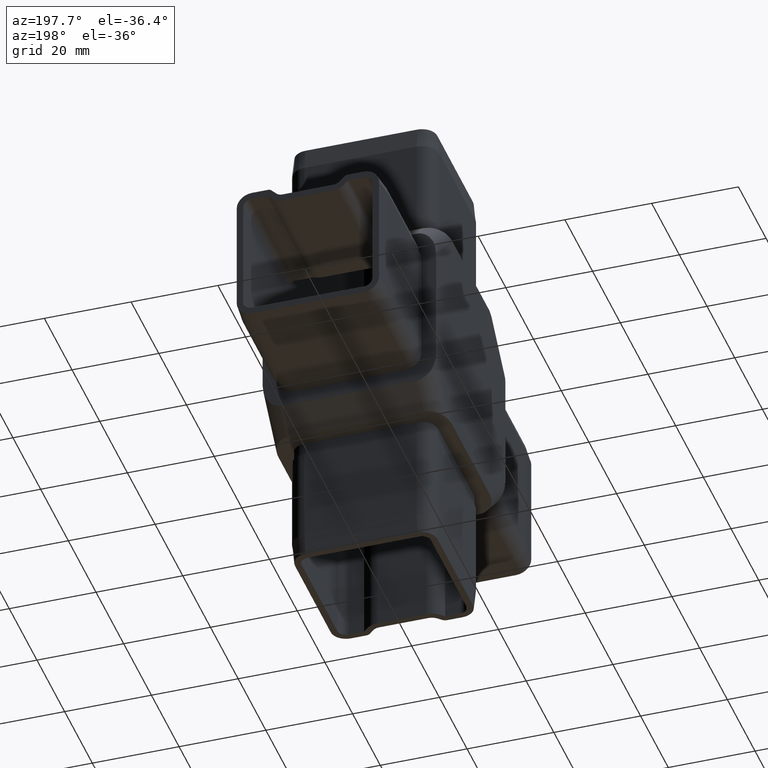
[diagram: clean part render]
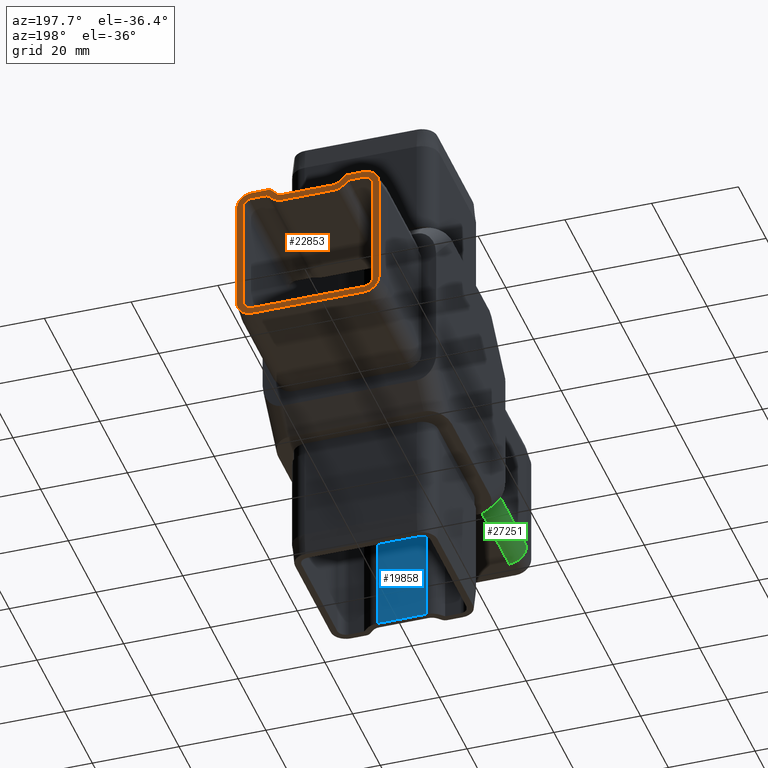
[diagram: same view with three faces highlighted in distinct colors, each labeled with its STEP entity id]
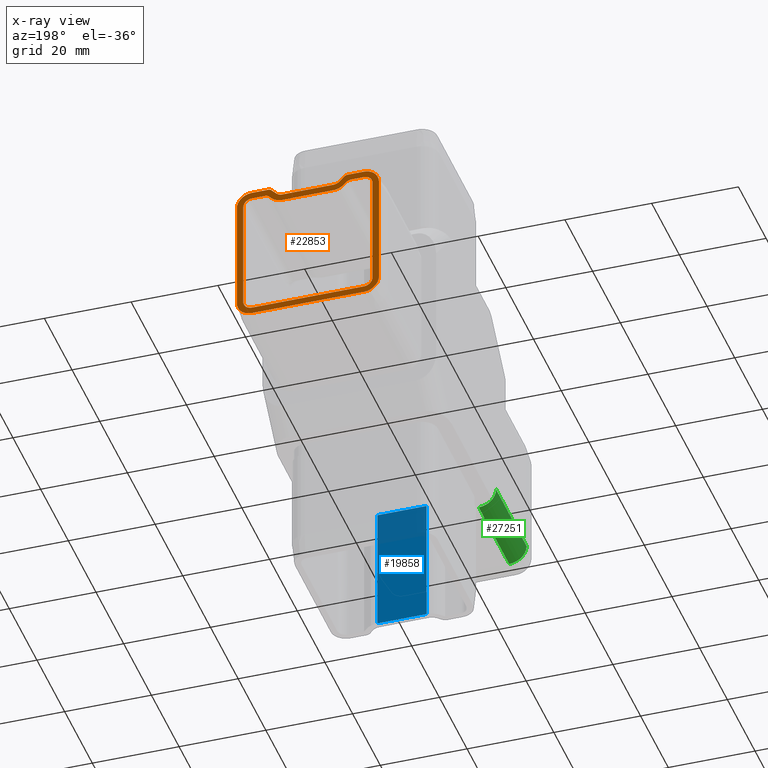
[diagram: x-ray of the same camera — body ghosted, the three highlighted faces saturated]
A machine part, auxiliary view with three faces highlighted in distinct colors.
The next image is the same camera in x-ray (body ghosted, the three faces saturated) — at least one of them is partly hidden behind the body in this view.
Their STEP definitions:

[orange] entity #22853 — the highlighted planar face has unit normal (0, 1, 0).
#66 = VECTOR ( 'NONE', #5137, 1000.000000000000000 ) ;
#212 = CARTESIAN_POINT ( 'NONE',  ( 9.121320343559645500, 54.99999999999999300, 15.40000000000000400 ) ) ;
#433 = VERTEX_POINT ( 'NONE', #9870 ) ;
#439 = CARTESIAN_POINT ( 'NONE',  ( 12.89999999999999900, 54.99999999999999300, 16.40000000000000600 ) ) ;
#707 = ORIENTED_EDGE ( 'NONE', *, *, #3073, .F. ) ;
#927 = CARTESIAN_POINT ( 'NONE',  ( -8.353553390593280200, 55.00000000000000000, 13.92512626584709100 ) ) ;
#981 = DIRECTION ( 'NONE',  ( 0.0000000000000000000, 0.0000000000000000000, -1.000000000000000000 ) ) ;
#1146 = CIRCLE ( 'NONE', #4066, 0.9999999999999904500 ) ;
#1230 = EDGE_CURVE ( 'NONE', #17230, #14850, #1146, .T. ) ;
#1303 = ORIENTED_EDGE ( 'NONE', *, *, #31641, .F. ) ;
#1318 = CARTESIAN_POINT ( 'NONE',  ( 8.414213562373101100, 54.99999999999999300, 16.10710678118654100 ) ) ;
#1738 = ORIENTED_EDGE ( 'NONE', *, *, #14950, .F. ) ;
#1876 = AXIS2_PLACEMENT_3D ( 'NONE', #20614, #5720, #981 ) ;
#1957 = ORIENTED_EDGE ( 'NONE', *, *, #8527, .F. ) ;
#1967 = CARTESIAN_POINT ( 'NONE',  ( 12.89999999999999900, 55.00000000000000000, 14.90000000000000600 ) ) ;
#2134 = VERTEX_POINT ( 'NONE', #12131 ) ;
#2229 = LINE ( 'NONE', #18598, #14988 ) ;
#2304 = FACE_BOUND ( 'NONE', #23704, .T. ) ;
#2414 = CARTESIAN_POINT ( 'NONE',  ( 5.878679656440369600, 55.00000000000000000, 16.40000000000000900 ) ) ;
#2453 = AXIS2_PLACEMENT_3D ( 'NONE', #11668, #18970, #14150 ) ;
#2483 = EDGE_CURVE ( 'NONE', #28726, #23460, #20472, .T. ) ;
#2627 = AXIS2_PLACEMENT_3D ( 'NONE', #17922, #30517, #30618 ) ;
#2635 = VECTOR ( 'NONE', #13842, 1000.000000000000000 ) ;
#2677 = CARTESIAN_POINT ( 'NONE',  ( 12.89999999999999900, 55.00000000000000000, 14.90000000000000600 ) ) ;
#2837 = VERTEX_POINT ( 'NONE', #28735 ) ;
#2942 = DIRECTION ( 'NONE',  ( 1.000000000000000000, -0.0000000000000000000, -0.0000000000000000000 ) ) ;
#2944 = EDGE_CURVE ( 'NONE', #11468, #17671, #26987, .T. ) ;
#3028 = EDGE_CURVE ( 'NONE', #27221, #17230, #10425, .T. ) ;
#3073 = EDGE_CURVE ( 'NONE', #22093, #16370, #23881, .T. ) ;
#3167 = CARTESIAN_POINT ( 'NONE',  ( -12.90000000000001300, 54.99999999999999300, 16.39999999999999500 ) ) ;
#3537 = DIRECTION ( 'NONE',  ( 2.689493761204353900E-016, 0.0000000000000000000, 1.000000000000000000 ) ) ;
#3598 = CARTESIAN_POINT ( 'NONE',  ( 12.89999999999999500, 54.99999999999999300, -16.39999999999997700 ) ) ;
#3628 = CARTESIAN_POINT ( 'NONE',  ( 7.292893218813467200, 54.99999999999999300, 14.98578643762690600 ) ) ;
#3632 = VECTOR ( 'NONE', #14459, 1000.000000000000000 ) ;
#3940 = CARTESIAN_POINT ( 'NONE',  ( -12.90000000000001300, 55.00000000000000000, 12.90000000000000600 ) ) ;
#3947 = DIRECTION ( 'NONE',  ( 0.0000000000000000000, 0.0000000000000000000, -1.000000000000000000 ) ) ;
#4060 = LINE ( 'NONE', #1967, #8302 ) ;
#4066 = AXIS2_PLACEMENT_3D ( 'NONE', #212, #17501, #21867 ) ;
#4127 = CARTESIAN_POINT ( 'NONE',  ( -14.90000000000001300, 55.00000000000000000, -12.89999999999997700 ) ) ;
#4234 = LINE ( 'NONE', #24705, #7728 ) ;
#4260 = DIRECTION ( 'NONE',  ( -0.0000000000000000000, -1.000000000000000000, -0.0000000000000000000 ) ) ;
#4262 = LINE ( 'NONE', #28180, #18167 ) ;
#4354 = CARTESIAN_POINT ( 'NONE',  ( -5.878679656440366100, 55.00000000000000000, 16.40000000000000900 ) ) ;
#4933 = CIRCLE ( 'NONE', #8967, 2.000000000000005300 ) ;
#5137 = DIRECTION ( 'NONE',  ( -0.7071067811865470200, 0.0000000000000000000, 0.7071067811865481300 ) ) ;
#5156 = VERTEX_POINT ( 'NONE', #4127 ) ;
#5358 = DIRECTION ( 'NONE',  ( -0.0000000000000000000, -1.000000000000000000, -0.0000000000000000000 ) ) ;
#5576 = ORIENTED_EDGE ( 'NONE', *, *, #28648, .F. ) ;
#5586 = ORIENTED_EDGE ( 'NONE', *, *, #15085, .F. ) ;
#5604 = ORIENTED_EDGE ( 'NONE', *, *, #21887, .F. ) ;
#5720 = DIRECTION ( 'NONE',  ( -0.0000000000000000000, -1.000000000000000000, -0.0000000000000000000 ) ) ;
#5926 = ORIENTED_EDGE ( 'NONE', *, *, #20248, .F. ) ;
#5984 = VERTEX_POINT ( 'NONE', #13708 ) ;
#5985 = EDGE_CURVE ( 'NONE', #23667, #28561, #24589, .T. ) ;
#5994 = CARTESIAN_POINT ( 'NONE',  ( 5.878679656440368700, 54.99999999999999300, 14.40000000000000000 ) ) ;
#6047 = CIRCLE ( 'NONE', #28271, 2.000000000000005300 ) ;
#6113 = ORIENTED_EDGE ( 'NONE', *, *, #26718, .F. ) ;
#6114 = CARTESIAN_POINT ( 'NONE',  ( -14.90000000000001300, 55.00000000000000000, 12.90000000000000600 ) ) ;
#6161 = LINE ( 'NONE', #25544, #30107 ) ;
#6328 = VERTEX_POINT ( 'NONE', #21592 ) ;
#6833 = DIRECTION ( 'NONE',  ( 0.0000000000000000000, 0.0000000000000000000, 1.000000000000000000 ) ) ;
#6900 = CARTESIAN_POINT ( 'NONE',  ( -9.121320343559641900, 54.99999999999999300, 15.40000000000000600 ) ) ;
#6926 = CIRCLE ( 'NONE', #20261, 1.499999999999999600 ) ;
#6948 = VECTOR ( 'NONE', #22957, 1000.000000000000100 ) ;
#7067 = ORIENTED_EDGE ( 'NONE', *, *, #5985, .F. ) ;
#7301 = EDGE_CURVE ( 'NONE', #21598, #18815, #24938, .T. ) ;
#7323 = VERTEX_POINT ( 'NONE', #23683 ) ;
#7384 = CIRCLE ( 'NONE', #10070, 3.499999999999985800 ) ;
#7663 = CARTESIAN_POINT ( 'NONE',  ( -6.938893903907228400E-015, 55.00000000000000000, -16.39999999999997700 ) ) ;
#7728 = VECTOR ( 'NONE', #19432, 1000.000000000000000 ) ;
#7745 = FACE_OUTER_BOUND ( 'NONE', #20897, .T. ) ;
#7817 = ORIENTED_EDGE ( 'NONE', *, *, #8716, .F. ) ;
#7843 = DIRECTION ( 'NONE',  ( 0.0000000000000000000, 0.0000000000000000000, 1.000000000000000000 ) ) ;
#7994 = ORIENTED_EDGE ( 'NONE', *, *, #9137, .F. ) ;
#8109 = CIRCLE ( 'NONE', #12423, 1.500000000000003100 ) ;
#8254 = CARTESIAN_POINT ( 'NONE',  ( -12.90000000000001600, 54.99999999999999300, -16.39999999999996300 ) ) ;
#8302 = VECTOR ( 'NONE', #16676, 1000.000000000000000 ) ;
#8329 = VECTOR ( 'NONE', #23575, 1000.000000000000000 ) ;
#8447 = DIRECTION ( 'NONE',  ( 1.000000000000000000, -0.0000000000000000000, 5.879915218581809300E-016 ) ) ;
#8527 = EDGE_CURVE ( 'NONE', #24226, #21529, #21001, .T. ) ;
#8533 = CARTESIAN_POINT ( 'NONE',  ( -8.353553390593281900, 55.00000000000000000, 13.92512626584709200 ) ) ;
#8553 = DIRECTION ( 'NONE',  ( 0.0000000000000000000, 1.000000000000000000, -0.0000000000000000000 ) ) ;
#8716 = EDGE_CURVE ( 'NONE', #10280, #5156, #21741, .T. ) ;
#8853 = VERTEX_POINT ( 'NONE', #28298 ) ;
#8935 = ORIENTED_EDGE ( 'NONE', *, *, #9579, .F. ) ;
#8967 = AXIS2_PLACEMENT_3D ( 'NONE', #26381, #28761, #16382 ) ;
#9137 = EDGE_CURVE ( 'NONE', #2837, #24114, #11781, .T. ) ;
#9292 = CARTESIAN_POINT ( 'NONE',  ( 16.39999999999999900, 54.99999999999999300, 12.90000000000000700 ) ) ;
#9330 = CARTESIAN_POINT ( 'NONE',  ( 9.949747468305840700, 55.00000000000000000, 13.40000000000000600 ) ) ;
#9345 = CARTESIAN_POINT ( 'NONE',  ( -9.121320343559641900, 54.99999999999999300, 16.39999999999999500 ) ) ;
#9364 = DIRECTION ( 'NONE',  ( 0.0000000000000000000, 0.0000000000000000000, 1.000000000000000000 ) ) ;
#9427 = ORIENTED_EDGE ( 'NONE', *, *, #12931, .F. ) ;
#9579 = EDGE_CURVE ( 'NONE', #24114, #6328, #16377, .T. ) ;
#9870 = CARTESIAN_POINT ( 'NONE',  ( -9.949747468305840700, 55.00000000000000000, 14.90000000000000700 ) ) ;
#9897 = ORIENTED_EDGE ( 'NONE', *, *, #20443, .F. ) ;
#10070 = AXIS2_PLACEMENT_3D ( 'NONE', #15514, #5358, #20245 ) ;
#10280 = VERTEX_POINT ( 'NONE', #17836 ) ;
#10332 = CARTESIAN_POINT ( 'NONE',  ( -12.90000000000001300, 55.00000000000000000, -12.89999999999997700 ) ) ;
#10425 = LINE ( 'NONE', #439, #16214 ) ;
#10471 = ORIENTED_EDGE ( 'NONE', *, *, #25211, .F. ) ;
#10711 = CARTESIAN_POINT ( 'NONE',  ( 12.89999999999999900, 54.99999999999999300, 12.90000000000000600 ) ) ;
#10870 = CARTESIAN_POINT ( 'NONE',  ( 5.878679656440368700, 54.99999999999999300, 14.40000000000000000 ) ) ;
#10918 = DIRECTION ( 'NONE',  ( 0.0000000000000000000, 0.0000000000000000000, -1.000000000000000000 ) ) ;
#10982 = VECTOR ( 'NONE', #26665, 1000.000000000000000 ) ;
#11468 = VERTEX_POINT ( 'NONE', #31677 ) ;
#11551 = DIRECTION ( 'NONE',  ( 0.0000000000000000000, 1.000000000000000000, -0.0000000000000000000 ) ) ;
#11659 = DIRECTION ( 'NONE',  ( 0.0000000000000000000, 0.0000000000000000000, 1.000000000000000000 ) ) ;
#11668 = CARTESIAN_POINT ( 'NONE',  ( 12.89999999999999500, 55.00000000000000000, -12.89999999999997700 ) ) ;
#11743 = DIRECTION ( 'NONE',  ( 0.0000000000000000000, 0.0000000000000000000, -1.000000000000000000 ) ) ;
#11781 = LINE ( 'NONE', #22105, #10982 ) ;
#11883 = CARTESIAN_POINT ( 'NONE',  ( -7.292893218813466300, 54.99999999999999300, 14.98578643762690800 ) ) ;
#11922 = ORIENTED_EDGE ( 'NONE', *, *, #17466, .F. ) ;
#11993 = CARTESIAN_POINT ( 'NONE',  ( -9.121320343559641900, 54.99999999999999300, 16.39999999999999500 ) ) ;
#12030 = EDGE_CURVE ( 'NONE', #7323, #29218, #8109, .T. ) ;
#12099 = EDGE_CURVE ( 'NONE', #433, #28726, #6926, .T. ) ;
#12131 = CARTESIAN_POINT ( 'NONE',  ( -16.39999999999999900, 54.99999999999999300, -12.89999999999997500 ) ) ;
#12322 = CARTESIAN_POINT ( 'NONE',  ( -8.889087296526019700, 55.00000000000000000, 14.46066017177982700 ) ) ;
#12364 = EDGE_CURVE ( 'NONE', #12396, #11468, #30710, .T. ) ;
#12396 = VERTEX_POINT ( 'NONE', #15187 ) ;
#12423 = AXIS2_PLACEMENT_3D ( 'NONE', #9330, #14529, #19559 ) ;
#12590 = CARTESIAN_POINT ( 'NONE',  ( 9.121320343559645500, 54.99999999999999300, 16.39999999999999500 ) ) ;
#12600 = DIRECTION ( 'NONE',  ( -1.000000000000000000, 0.0000000000000000000, -2.754491463207510900E-015 ) ) ;
#12611 = ORIENTED_EDGE ( 'NONE', *, *, #7301, .F. ) ;
#12664 = VECTOR ( 'NONE', #15688, 1000.000000000000000 ) ;
#12840 = VECTOR ( 'NONE', #20755, 1000.000000000000000 ) ;
#12857 = ORIENTED_EDGE ( 'NONE', *, *, #12030, .F. ) ;
#12910 = CARTESIAN_POINT ( 'NONE',  ( 12.89999999999999500, 54.99999999999999300, -16.39999999999997700 ) ) ;
#12914 = CARTESIAN_POINT ( 'NONE',  ( 16.39999999999999100, 54.99999999999999300, -12.89999999999997500 ) ) ;
#12931 = EDGE_CURVE ( 'NONE', #21529, #5984, #30196, .T. ) ;
#13107 = LINE ( 'NONE', #28811, #2635 ) ;
#13226 = LINE ( 'NONE', #17451, #66 ) ;
#13321 = ORIENTED_EDGE ( 'NONE', *, *, #26556, .F. ) ;
#13698 = VERTEX_POINT ( 'NONE', #2677 ) ;
#13708 = CARTESIAN_POINT ( 'NONE',  ( -16.39999999999999900, 54.99999999999999300, 12.90000000000000700 ) ) ;
#13800 = ORIENTED_EDGE ( 'NONE', *, *, #20009, .T. ) ;
#13842 = DIRECTION ( 'NONE',  ( 0.0000000000000000000, 0.0000000000000000000, -1.000000000000000000 ) ) ;
#14150 = DIRECTION ( 'NONE',  ( 0.0000000000000000000, 0.0000000000000000000, 1.000000000000000000 ) ) ;
#14353 = DIRECTION ( 'NONE',  ( 0.0000000000000000000, 1.000000000000000000, 0.0000000000000000000 ) ) ;
#14459 = DIRECTION ( 'NONE',  ( -1.000000000000000000, 0.0000000000000000000, 0.0000000000000000000 ) ) ;
#14529 = DIRECTION ( 'NONE',  ( 0.0000000000000000000, 1.000000000000000000, -0.0000000000000000000 ) ) ;
#14662 = CARTESIAN_POINT ( 'NONE',  ( 5.878679656440369600, 54.99999999999999300, 16.40000000000000900 ) ) ;
#14850 = VERTEX_POINT ( 'NONE', #1318 ) ;
#14950 = EDGE_CURVE ( 'NONE', #15854, #16671, #18170, .T. ) ;
#14988 = VECTOR ( 'NONE', #15807, 1000.000000000000000 ) ;
#15085 = EDGE_CURVE ( 'NONE', #23460, #12396, #24331, .T. ) ;
#15161 = ORIENTED_EDGE ( 'NONE', *, *, #28553, .F. ) ;
#15187 = CARTESIAN_POINT ( 'NONE',  ( -5.878679656440366900, 55.00000000000000000, 12.90000000000000900 ) ) ;
#15332 = VECTOR ( 'NONE', #2942, 1000.000000000000000 ) ;
#15459 = CARTESIAN_POINT ( 'NONE',  ( 12.89999999999999900, 54.99999999999999300, 16.40000000000000600 ) ) ;
#15514 = CARTESIAN_POINT ( 'NONE',  ( -12.90000000000001300, 54.99999999999999300, -12.89999999999997700 ) ) ;
#15583 = AXIS2_PLACEMENT_3D ( 'NONE', #10711, #20296, #10918 ) ;
#15624 = CARTESIAN_POINT ( 'NONE',  ( 8.353553390593283700, 55.00000000000000000, 13.92512626584709200 ) ) ;
#15671 = EDGE_CURVE ( 'NONE', #5156, #23667, #4234, .T. ) ;
#15688 = DIRECTION ( 'NONE',  ( -0.7071067811865470200, 0.0000000000000000000, -0.7071067811865481300 ) ) ;
#15739 = ORIENTED_EDGE ( 'NONE', *, *, #30741, .F. ) ;
#15763 = PLANE ( 'NONE',  #2627 ) ;
#15807 = DIRECTION ( 'NONE',  ( -1.000000000000000000, -0.0000000000000000000, -0.0000000000000000000 ) ) ;
#15854 = VERTEX_POINT ( 'NONE', #18287 ) ;
#16214 = VECTOR ( 'NONE', #12600, 1000.000000000000000 ) ;
#16370 = VERTEX_POINT ( 'NONE', #9292 ) ;
#16377 = CIRCLE ( 'NONE', #2453, 2.000000000000000000 ) ;
#16382 = DIRECTION ( 'NONE',  ( 0.0000000000000000000, 0.0000000000000000000, 1.000000000000000000 ) ) ;
#16598 = CARTESIAN_POINT ( 'NONE',  ( -12.90000000000001300, 54.99999999999999300, 12.90000000000000600 ) ) ;
#16671 = VERTEX_POINT ( 'NONE', #7663 ) ;
#16676 = DIRECTION ( 'NONE',  ( 1.000000000000000000, -0.0000000000000000000, -1.175983043716367400E-015 ) ) ;
#16728 = ORIENTED_EDGE ( 'NONE', *, *, #12099, .F. ) ;
#17131 = AXIS2_PLACEMENT_3D ( 'NONE', #10332, #27552, #7843 ) ;
#17230 = VERTEX_POINT ( 'NONE', #12590 ) ;
#17451 = CARTESIAN_POINT ( 'NONE',  ( -7.292893218813466300, 54.99999999999999300, 14.98578643762690800 ) ) ;
#17466 = EDGE_CURVE ( 'NONE', #18815, #21252, #4933, .T. ) ;
#17501 = DIRECTION ( 'NONE',  ( -0.0000000000000000000, -1.000000000000000000, -0.0000000000000000000 ) ) ;
#17671 = VERTEX_POINT ( 'NONE', #15624 ) ;
#17836 = CARTESIAN_POINT ( 'NONE',  ( -12.90000000000001300, 55.00000000000000000, -14.89999999999997700 ) ) ;
#17922 = CARTESIAN_POINT ( 'NONE',  ( 12.89999999999999500, 55.00000000000000000, -12.89999999999997700 ) ) ;
#17998 = CARTESIAN_POINT ( 'NONE',  ( 16.39999999999999100, 54.99999999999999300, -12.89999999999997500 ) ) ;
#18167 = VECTOR ( 'NONE', #8447, 1000.000000000000000 ) ;
#18170 = LINE ( 'NONE', #8254, #23549 ) ;
#18287 = CARTESIAN_POINT ( 'NONE',  ( -12.90000000000001600, 54.99999999999999300, -16.39999999999996300 ) ) ;
#18539 = DIRECTION ( 'NONE',  ( 0.7071067811865463500, -0.0000000000000000000, 0.7071067811865487900 ) ) ;
#18598 = CARTESIAN_POINT ( 'NONE',  ( -12.90000000000001300, 55.00000000000000000, -14.89999999999997700 ) ) ;
#18815 = VERTEX_POINT ( 'NONE', #31368 ) ;
#18970 = DIRECTION ( 'NONE',  ( 0.0000000000000000000, 1.000000000000000000, 0.0000000000000000000 ) ) ;
#19178 = DIRECTION ( 'NONE',  ( 0.0000000000000000000, 1.000000000000000000, 0.0000000000000000000 ) ) ;
#19363 = CARTESIAN_POINT ( 'NONE',  ( 9.949747468305840700, 55.00000000000000000, 14.90000000000000900 ) ) ;
#19432 = DIRECTION ( 'NONE',  ( -0.0000000000000000000, -0.0000000000000000000, 1.000000000000000000 ) ) ;
#19470 = CIRCLE ( 'NONE', #20982, 0.9999999999999887900 ) ;
#19559 = DIRECTION ( 'NONE',  ( 0.0000000000000000000, 0.0000000000000000000, -1.000000000000000000 ) ) ;
#19675 = DIRECTION ( 'NONE',  ( -0.0000000000000000000, -1.000000000000000000, 0.0000000000000000000 ) ) ;
#19829 = AXIS2_PLACEMENT_3D ( 'NONE', #2414, #19675, #27096 ) ;
#20009 = EDGE_CURVE ( 'NONE', #30682, #16671, #26681, .T. ) ;
#20245 = DIRECTION ( 'NONE',  ( 0.0000000000000000000, 0.0000000000000000000, -1.000000000000000000 ) ) ;
#20248 = EDGE_CURVE ( 'NONE', #21252, #8853, #13226, .T. ) ;
#20261 = AXIS2_PLACEMENT_3D ( 'NONE', #23400, #8553, #25685 ) ;
#20296 = DIRECTION ( 'NONE',  ( -0.0000000000000000000, -1.000000000000000000, -0.0000000000000000000 ) ) ;
#20418 = VECTOR ( 'NONE', #3537, 1000.000000000000000 ) ;
#20443 = EDGE_CURVE ( 'NONE', #28561, #433, #4262, .T. ) ;
#20472 = LINE ( 'NONE', #8533, #6948 ) ;
#20614 = CARTESIAN_POINT ( 'NONE',  ( 12.89999999999999500, 54.99999999999999300, -12.89999999999997700 ) ) ;
#20755 = DIRECTION ( 'NONE',  ( -1.000000000000000000, -0.0000000000000000000, -0.0000000000000000000 ) ) ;
#20897 = EDGE_LOOP ( 'NONE', ( #1738, #29998, #25184, #9427, #1957, #5604, #5926, #11922, #12611, #10471, #1303, #30626, #22639, #15739, #707, #13321, #13800 ) ) ;
#20982 = AXIS2_PLACEMENT_3D ( 'NONE', #6900, #24152, #26651 ) ;
#21001 = LINE ( 'NONE', #11993, #3632 ) ;
#21252 = VERTEX_POINT ( 'NONE', #11883 ) ;
#21493 = EDGE_CURVE ( 'NONE', #2134, #15854, #7384, .T. ) ;
#21529 = VERTEX_POINT ( 'NONE', #3167 ) ;
#21592 = CARTESIAN_POINT ( 'NONE',  ( 12.89999999999999500, 55.00000000000000000, -14.89999999999997700 ) ) ;
#21598 = VERTEX_POINT ( 'NONE', #10870 ) ;
#21602 = DIRECTION ( 'NONE',  ( -0.0000000000000000000, -1.000000000000000000, -0.0000000000000000000 ) ) ;
#21741 = CIRCLE ( 'NONE', #17131, 2.000000000000000000 ) ;
#21867 = DIRECTION ( 'NONE',  ( 0.0000000000000000000, 0.0000000000000000000, -1.000000000000000000 ) ) ;
#21887 = EDGE_CURVE ( 'NONE', #8853, #24226, #19470, .T. ) ;
#22093 = VERTEX_POINT ( 'NONE', #17998 ) ;
#22105 = CARTESIAN_POINT ( 'NONE',  ( 14.89999999999999500, 55.00000000000000000, -12.89999999999997700 ) ) ;
#22639 = ORIENTED_EDGE ( 'NONE', *, *, #3028, .F. ) ;
#22853 = ADVANCED_FACE ( 'NONE', ( #7745, #2304 ), #15763, .T. ) ;
#22948 = CIRCLE ( 'NONE', #1876, 3.499999999999999600 ) ;
#22957 = DIRECTION ( 'NONE',  ( 0.7071067811865499000, -0.0000000000000000000, -0.7071067811865452400 ) ) ;
#23139 = CARTESIAN_POINT ( 'NONE',  ( -12.90000000000001300, 55.00000000000000000, 14.90000000000000600 ) ) ;
#23400 = CARTESIAN_POINT ( 'NONE',  ( -9.949747468305840700, 55.00000000000000000, 13.40000000000000700 ) ) ;
#23460 = VERTEX_POINT ( 'NONE', #927 ) ;
#23549 = VECTOR ( 'NONE', #30157, 1000.000000000000000 ) ;
#23575 = DIRECTION ( 'NONE',  ( -1.000000000000000000, 0.0000000000000000000, 1.475436303181052200E-016 ) ) ;
#23667 = VERTEX_POINT ( 'NONE', #6114 ) ;
#23683 = CARTESIAN_POINT ( 'NONE',  ( 8.889087296526017900, 55.00000000000000000, 14.46066017177982800 ) ) ;
#23704 = EDGE_LOOP ( 'NONE', ( #26530, #7817, #29163, #8935, #7994, #5576, #6113, #12857, #15161, #26224, #28864, #5586, #30528, #16728, #9897, #7067 ) ) ;
#23881 = LINE ( 'NONE', #12914, #20418 ) ;
#24114 = VERTEX_POINT ( 'NONE', #25618 ) ;
#24152 = DIRECTION ( 'NONE',  ( -0.0000000000000000000, -1.000000000000000000, -0.0000000000000000000 ) ) ;
#24226 = VERTEX_POINT ( 'NONE', #9345 ) ;
#24331 = CIRCLE ( 'NONE', #29810, 3.499999999999999600 ) ;
#24589 = CIRCLE ( 'NONE', #31450, 2.000000000000000000 ) ;
#24705 = CARTESIAN_POINT ( 'NONE',  ( -14.90000000000001300, 55.00000000000000000, 12.90000000000000600 ) ) ;
#24938 = LINE ( 'NONE', #5994, #8329 ) ;
#25179 = CARTESIAN_POINT ( 'NONE',  ( 5.878679656440371400, 55.00000000000000000, 12.90000000000000900 ) ) ;
#25184 = ORIENTED_EDGE ( 'NONE', *, *, #29843, .F. ) ;
#25211 = EDGE_CURVE ( 'NONE', #28425, #21598, #6047, .T. ) ;
#25488 = CARTESIAN_POINT ( 'NONE',  ( 8.414213562373101100, 54.99999999999999300, 16.10710678118654100 ) ) ;
#25544 = CARTESIAN_POINT ( 'NONE',  ( 8.889087296526017900, 55.00000000000000000, 14.46066017177982800 ) ) ;
#25618 = CARTESIAN_POINT ( 'NONE',  ( 14.89999999999999500, 55.00000000000000000, -12.89999999999997700 ) ) ;
#25685 = DIRECTION ( 'NONE',  ( 0.0000000000000000000, 0.0000000000000000000, -1.000000000000000000 ) ) ;
#26048 = AXIS2_PLACEMENT_3D ( 'NONE', #26402, #11551, #3947 ) ;
#26224 = ORIENTED_EDGE ( 'NONE', *, *, #2944, .F. ) ;
#26381 = CARTESIAN_POINT ( 'NONE',  ( -5.878679656440366100, 54.99999999999999300, 16.40000000000000900 ) ) ;
#26402 = CARTESIAN_POINT ( 'NONE',  ( 12.89999999999999900, 55.00000000000000000, 12.90000000000000600 ) ) ;
#26530 = ORIENTED_EDGE ( 'NONE', *, *, #15671, .F. ) ;
#26556 = EDGE_CURVE ( 'NONE', #30682, #22093, #22948, .T. ) ;
#26651 = DIRECTION ( 'NONE',  ( 0.0000000000000000000, 0.0000000000000000000, -1.000000000000000000 ) ) ;
#26665 = DIRECTION ( 'NONE',  ( -1.344746880602177000E-016, -0.0000000000000000000, -1.000000000000000000 ) ) ;
#26681 = LINE ( 'NONE', #3598, #12840 ) ;
#26718 = EDGE_CURVE ( 'NONE', #29218, #13698, #4060, .T. ) ;
#26987 = CIRCLE ( 'NONE', #19829, 3.499999999999999600 ) ;
#27096 = DIRECTION ( 'NONE',  ( 0.0000000000000000000, 0.0000000000000000000, -1.000000000000000000 ) ) ;
#27221 = VERTEX_POINT ( 'NONE', #15459 ) ;
#27552 = DIRECTION ( 'NONE',  ( 0.0000000000000000000, 1.000000000000000000, 0.0000000000000000000 ) ) ;
#28028 = LINE ( 'NONE', #25488, #12664 ) ;
#28180 = CARTESIAN_POINT ( 'NONE',  ( -9.949747468305840700, 55.00000000000000000, 14.90000000000000700 ) ) ;
#28271 = AXIS2_PLACEMENT_3D ( 'NONE', #14662, #14353, #9364 ) ;
#28298 = CARTESIAN_POINT ( 'NONE',  ( -8.414213562373102900, 54.99999999999999300, 16.10710678118654500 ) ) ;
#28425 = VERTEX_POINT ( 'NONE', #3628 ) ;
#28553 = EDGE_CURVE ( 'NONE', #17671, #7323, #6161, .T. ) ;
#28561 = VERTEX_POINT ( 'NONE', #23139 ) ;
#28648 = EDGE_CURVE ( 'NONE', #13698, #2837, #29345, .T. ) ;
#28726 = VERTEX_POINT ( 'NONE', #12322 ) ;
#28735 = CARTESIAN_POINT ( 'NONE',  ( 14.89999999999999900, 55.00000000000000000, 12.90000000000000600 ) ) ;
#28761 = DIRECTION ( 'NONE',  ( 0.0000000000000000000, 1.000000000000000000, 0.0000000000000000000 ) ) ;
#28811 = CARTESIAN_POINT ( 'NONE',  ( -16.39999999999999900, 54.99999999999999300, 12.90000000000000700 ) ) ;
#28864 = ORIENTED_EDGE ( 'NONE', *, *, #12364, .F. ) ;
#29163 = ORIENTED_EDGE ( 'NONE', *, *, #30479, .F. ) ;
#29218 = VERTEX_POINT ( 'NONE', #19363 ) ;
#29247 = CIRCLE ( 'NONE', #15583, 3.499999999999999600 ) ;
#29345 = CIRCLE ( 'NONE', #26048, 2.000000000000000000 ) ;
#29810 = AXIS2_PLACEMENT_3D ( 'NONE', #4354, #21602, #6833 ) ;
#29843 = EDGE_CURVE ( 'NONE', #5984, #2134, #13107, .T. ) ;
#29998 = ORIENTED_EDGE ( 'NONE', *, *, #21493, .F. ) ;
#30107 = VECTOR ( 'NONE', #18539, 999.9999999999998900 ) ;
#30157 = DIRECTION ( 'NONE',  ( 1.000000000000000000, 0.0000000000000000000, 0.0000000000000000000 ) ) ;
#30196 = CIRCLE ( 'NONE', #32040, 3.499999999999989300 ) ;
#30479 = EDGE_CURVE ( 'NONE', #6328, #10280, #2229, .T. ) ;
#30517 = DIRECTION ( 'NONE',  ( 0.0000000000000000000, 1.000000000000000000, 0.0000000000000000000 ) ) ;
#30528 = ORIENTED_EDGE ( 'NONE', *, *, #2483, .F. ) ;
#30618 = DIRECTION ( 'NONE',  ( 0.0000000000000000000, -0.0000000000000000000, 1.000000000000000000 ) ) ;
#30626 = ORIENTED_EDGE ( 'NONE', *, *, #1230, .F. ) ;
#30682 = VERTEX_POINT ( 'NONE', #12910 ) ;
#30710 = LINE ( 'NONE', #25179, #15332 ) ;
#30741 = EDGE_CURVE ( 'NONE', #16370, #27221, #29247, .T. ) ;
#31368 = CARTESIAN_POINT ( 'NONE',  ( -5.878679656440368700, 54.99999999999999300, 14.40000000000000200 ) ) ;
#31450 = AXIS2_PLACEMENT_3D ( 'NONE', #3940, #19178, #11659 ) ;
#31641 = EDGE_CURVE ( 'NONE', #14850, #28425, #28028, .T. ) ;
#31677 = CARTESIAN_POINT ( 'NONE',  ( 5.878679656440371400, 55.00000000000000000, 12.90000000000000900 ) ) ;
#32040 = AXIS2_PLACEMENT_3D ( 'NONE', #16598, #4260, #11743 ) ;

[blue] entity #19858 — the highlighted planar face has unit normal (0, -1, 0).
#1818 = DIRECTION ( 'NONE',  ( 3.058628557072318300E-016, -1.000000000000000000, 0.0000000000000000000 ) ) ;
#1932 = PLANE ( 'NONE',  #24063 ) ;
#2277 = LINE ( 'NONE', #2577, #31620 ) ;
#2577 = CARTESIAN_POINT ( 'NONE',  ( 5.671572875253816400, -12.89999999999999100, -25.00000000000001400 ) ) ;
#3853 = CARTESIAN_POINT ( 'NONE',  ( -5.671572875253811000, -12.89999999999999500, -55.00000000000000000 ) ) ;
#4306 = CARTESIAN_POINT ( 'NONE',  ( -5.671572875253811000, -12.89999999999999500, -25.00000000000001400 ) ) ;
#7320 = CARTESIAN_POINT ( 'NONE',  ( 5.671572875253816400, -12.89999999999999100, -55.00000000000000000 ) ) ;
#7493 = CARTESIAN_POINT ( 'NONE',  ( -5.671572875253811000, -12.89999999999999500, -25.50883117545682300 ) ) ;
#8575 = VECTOR ( 'NONE', #24572, 1000.000000000000000 ) ;
#8640 = ORIENTED_EDGE ( 'NONE', *, *, #13847, .F. ) ;
#9439 = CARTESIAN_POINT ( 'NONE',  ( 5.671572875253816400, -12.89999999999999100, -55.00000000000000000 ) ) ;
#12355 = EDGE_CURVE ( 'NONE', #29987, #24919, #19229, .T. ) ;
#12555 = DIRECTION ( 'NONE',  ( -0.0000000000000000000, -0.0000000000000000000, 1.000000000000000000 ) ) ;
#13345 = ORIENTED_EDGE ( 'NONE', *, *, #12355, .T. ) ;
#13847 = EDGE_CURVE ( 'NONE', #19802, #18136, #23201, .T. ) ;
#16864 = DIRECTION ( 'NONE',  ( 1.000000000000000000, 3.058628557072318300E-016, 0.0000000000000000000 ) ) ;
#17695 = VECTOR ( 'NONE', #29929, 1000.000000000000000 ) ;
#18136 = VERTEX_POINT ( 'NONE', #9439 ) ;
#18894 = ORIENTED_EDGE ( 'NONE', *, *, #23197, .F. ) ;
#19229 = LINE ( 'NONE', #7493, #17695 ) ;
#19802 = VERTEX_POINT ( 'NONE', #3853 ) ;
#19840 = EDGE_CURVE ( 'NONE', #19802, #29987, #24764, .T. ) ;
#19858 = ADVANCED_FACE ( 'NONE', ( #25522 ), #1932, .F. ) ;
#20359 = CARTESIAN_POINT ( 'NONE',  ( 5.671572875253816400, -12.89999999999999100, -25.50883117545682700 ) ) ;
#21538 = DIRECTION ( 'NONE',  ( -0.0000000000000000000, -0.0000000000000000000, 1.000000000000000000 ) ) ;
#23197 = EDGE_CURVE ( 'NONE', #18136, #24919, #2277, .T. ) ;
#23201 = LINE ( 'NONE', #7320, #8575 ) ;
#24063 = AXIS2_PLACEMENT_3D ( 'NONE', #31817, #1818, #16864 ) ;
#24572 = DIRECTION ( 'NONE',  ( 1.000000000000000000, 3.058628557072318300E-016, 0.0000000000000000000 ) ) ;
#24693 = CARTESIAN_POINT ( 'NONE',  ( -5.671572875253811000, -12.89999999999999500, -25.50883117545682300 ) ) ;
#24764 = LINE ( 'NONE', #4306, #31312 ) ;
#24919 = VERTEX_POINT ( 'NONE', #20359 ) ;
#25522 = FACE_OUTER_BOUND ( 'NONE', #27986, .T. ) ;
#27986 = EDGE_LOOP ( 'NONE', ( #30066, #13345, #18894, #8640 ) ) ;
#29929 = DIRECTION ( 'NONE',  ( 1.000000000000000000, 3.058628557072318300E-016, -3.058628557072301500E-016 ) ) ;
#29987 = VERTEX_POINT ( 'NONE', #24693 ) ;
#30066 = ORIENTED_EDGE ( 'NONE', *, *, #19840, .T. ) ;
#31312 = VECTOR ( 'NONE', #21538, 1000.000000000000000 ) ;
#31620 = VECTOR ( 'NONE', #12555, 1000.000000000000000 ) ;
#31817 = CARTESIAN_POINT ( 'NONE',  ( -5.671572875253811000, -12.89999999999999500, -25.00000000000001400 ) ) ;

[green] entity #27251 — the highlighted cylindrical surface (edge-blend (fillet) strip) has radius 4 mm, axis along (-0, 1, -0).
#232 = EDGE_CURVE ( 'NONE', #10213, #17453, #5807, .T. ) ;
#260 = CARTESIAN_POINT ( 'NONE',  ( -16.90000000000001300, -55.00000000000000000, -12.89999999999997700 ) ) ;
#359 = DIRECTION ( 'NONE',  ( -0.0000000000000000000, 1.000000000000000000, -0.0000000000000000000 ) ) ;
#928 = ORIENTED_EDGE ( 'NONE', *, *, #5831, .T. ) ;
#1168 = CARTESIAN_POINT ( 'NONE',  ( -12.90000000000001300, -55.00000000000000000, -12.89999999999997700 ) ) ;
#1333 = ORIENTED_EDGE ( 'NONE', *, *, #19256, .F. ) ;
#1454 = CARTESIAN_POINT ( 'NONE',  ( -16.90000000000000600, -28.00000000000000000, -12.89999999999997500 ) ) ;
#1638 = CARTESIAN_POINT ( 'NONE',  ( -12.90000000000001300, -50.00000000000000000, -12.89999999999997700 ) ) ;
#4405 = CARTESIAN_POINT ( 'NONE',  ( -12.90000000000000900, -50.00000000000000000, -16.89999999999996300 ) ) ;
#4994 = DIRECTION ( 'NONE',  ( 0.0000000000000000000, 0.0000000000000000000, -1.000000000000000000 ) ) ;
#5807 = CIRCLE ( 'NONE', #26378, 3.999999999999986200 ) ;
#5831 = EDGE_CURVE ( 'NONE', #27837, #30993, #31548, .T. ) ;
#5987 = VECTOR ( 'NONE', #359, 1000.000000000000000 ) ;
#6473 = ORIENTED_EDGE ( 'NONE', *, *, #26337, .T. ) ;
#6936 = CARTESIAN_POINT ( 'NONE',  ( -16.89999999999999900, -50.00000000000000000, -12.89999999999998300 ) ) ;
#8636 = CARTESIAN_POINT ( 'NONE',  ( -12.90000000000001600, -28.00000000000000000, -16.89999999999997000 ) ) ;
#10213 = VERTEX_POINT ( 'NONE', #6936 ) ;
#12450 = DIRECTION ( 'NONE',  ( 0.0000000000000000000, 0.0000000000000000000, -1.000000000000000000 ) ) ;
#13648 = VECTOR ( 'NONE', #18193, 1000.000000000000000 ) ;
#16281 = ORIENTED_EDGE ( 'NONE', *, *, #232, .F. ) ;
#16683 = DIRECTION ( 'NONE',  ( 0.0000000000000000000, -1.000000000000000000, 0.0000000000000000000 ) ) ;
#17453 = VERTEX_POINT ( 'NONE', #4405 ) ;
#18193 = DIRECTION ( 'NONE',  ( -0.0000000000000000000, 1.000000000000000000, -0.0000000000000000000 ) ) ;
#18839 = AXIS2_PLACEMENT_3D ( 'NONE', #1168, #23367, #20491 ) ;
#19256 = EDGE_CURVE ( 'NONE', #17453, #30993, #25546, .T. ) ;
#19415 = CARTESIAN_POINT ( 'NONE',  ( -12.90000000000001300, -28.00000000000000000, -12.89999999999997700 ) ) ;
#20486 = AXIS2_PLACEMENT_3D ( 'NONE', #19415, #29368, #12450 ) ;
#20491 = DIRECTION ( 'NONE',  ( 0.0000000000000000000, 0.0000000000000000000, 1.000000000000000000 ) ) ;
#23367 = DIRECTION ( 'NONE',  ( -0.0000000000000000000, 1.000000000000000000, -0.0000000000000000000 ) ) ;
#25514 = CARTESIAN_POINT ( 'NONE',  ( -12.90000000000001300, -55.00000000000000000, -16.89999999999997700 ) ) ;
#25546 = LINE ( 'NONE', #25514, #13648 ) ;
#25693 = LINE ( 'NONE', #260, #5987 ) ;
#26337 = EDGE_CURVE ( 'NONE', #10213, #27837, #25693, .T. ) ;
#26378 = AXIS2_PLACEMENT_3D ( 'NONE', #1638, #16683, #4994 ) ;
#26416 = EDGE_LOOP ( 'NONE', ( #1333, #16281, #6473, #928 ) ) ;
#26829 = FACE_OUTER_BOUND ( 'NONE', #26416, .T. ) ;
#27251 = ADVANCED_FACE ( 'NONE', ( #26829 ), #31845, .T. ) ;
#27837 = VERTEX_POINT ( 'NONE', #1454 ) ;
#29368 = DIRECTION ( 'NONE',  ( 0.0000000000000000000, -1.000000000000000000, 0.0000000000000000000 ) ) ;
#30993 = VERTEX_POINT ( 'NONE', #8636 ) ;
#31548 = CIRCLE ( 'NONE', #20486, 3.999999999999993300 ) ;
#31845 = CYLINDRICAL_SURFACE ( 'NONE', #18839, 4.000000000000000000 ) ;